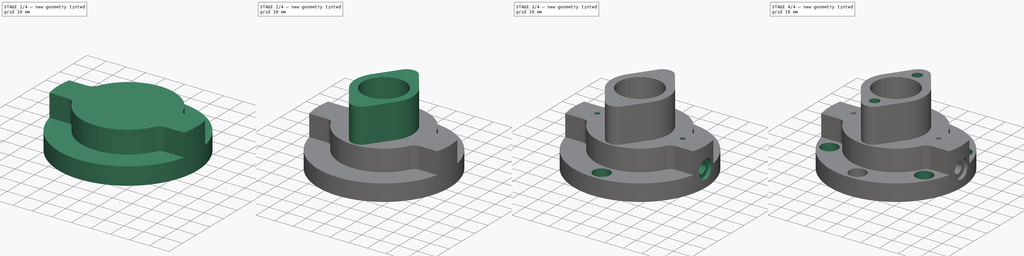
[diagram: build sequence overview — one tinted view per stage of 4, left to right]
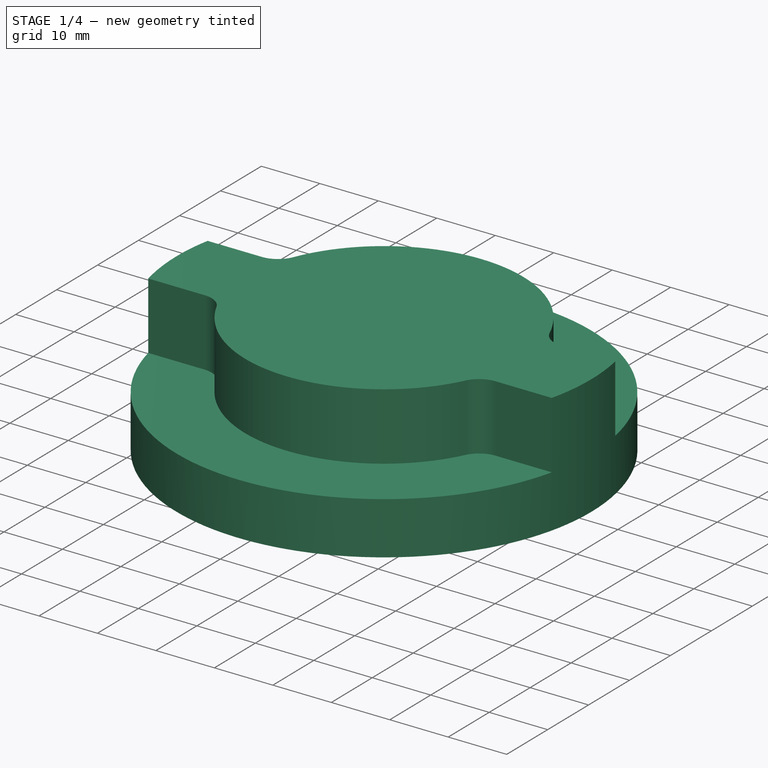
[diagram: stage 1 of 4 — iso view after this stage's code; geometry added in this stage tinted green]
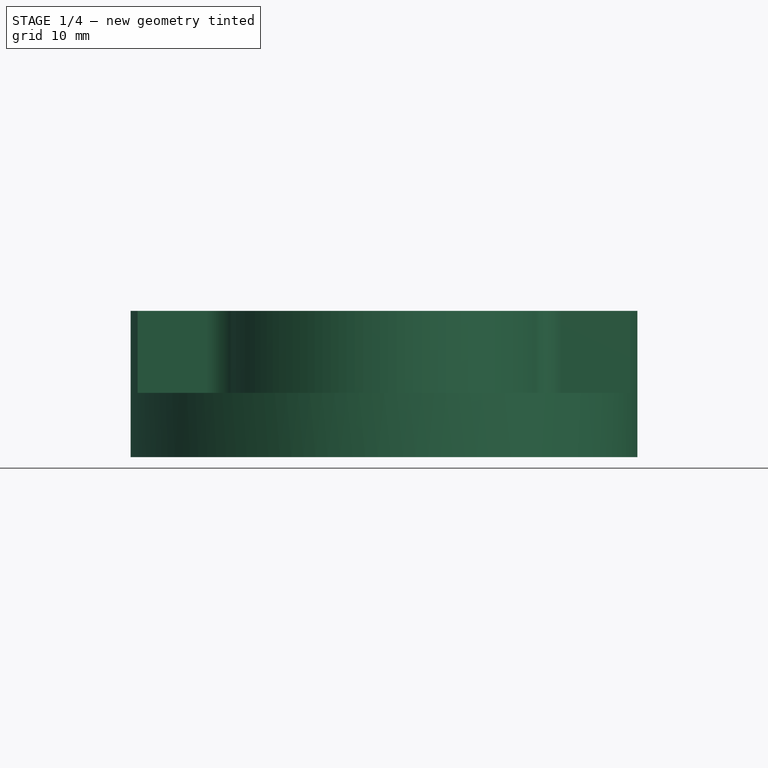
[diagram: stage 1 of 4 — front view after this stage's code; geometry added in this stage tinted green]
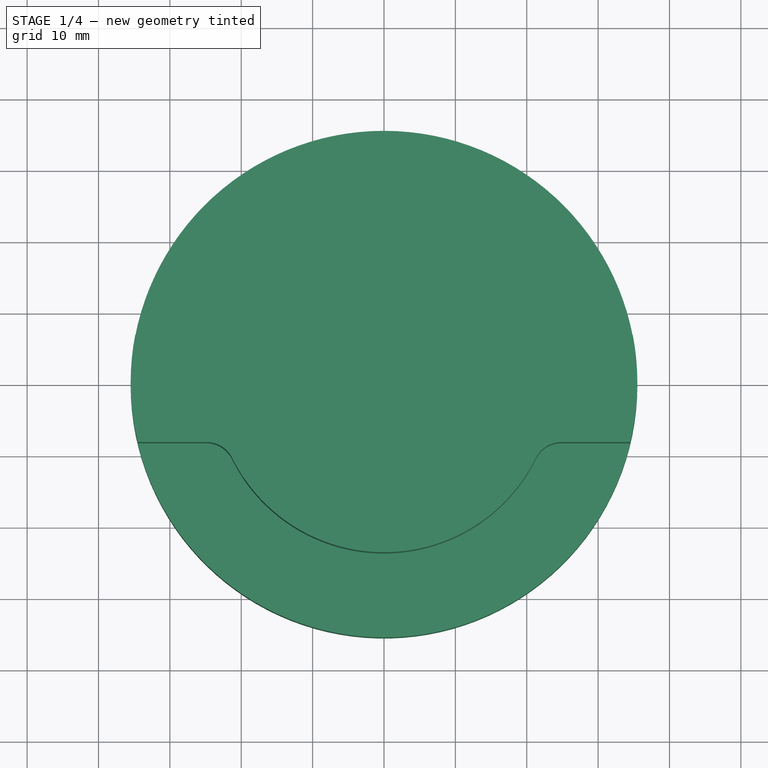
[diagram: stage 1 of 4 — top view after this stage's code; geometry added in this stage tinted green]
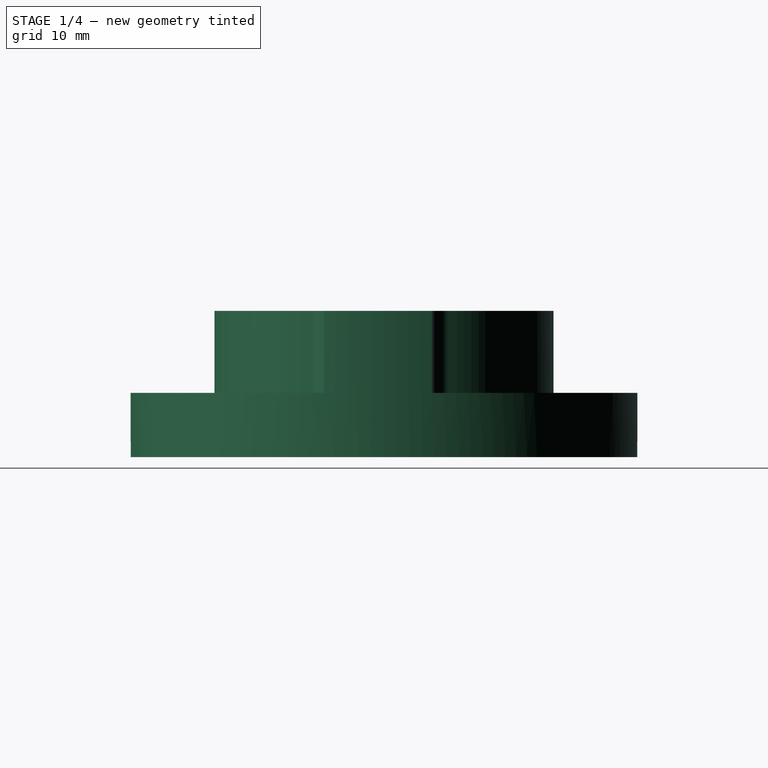
[diagram: stage 1 of 4 — right view after this stage's code; geometry added in this stage tinted green]
FCSTD DOCUMENT  (FreeCAD 0.21R33771 (Git))
Label: ex92
License: All rights reserved
LicenseURL: https://en.wikipedia.org/wiki/All_rights_reserved
objects: Sketcher::SketchObject×8, PartDesign::Pad×2, PartDesign::Fillet×2, PartDesign::Groove×2, PartDesign::Mirrored×2, PartDesign::Hole×2, PartDesign::Revolution×1, PartDesign::Pocket×1, PartDesign::PolarPattern×1, PartDesign::Body×1
note: 32 computed .brp shape members not serialized (recipe doc carries the construction recipe); baked Part::Feature solids carry a one-line shape summary decoded from their .brp

FEATURE [Sketcher::SketchObject] Sketch
  FullyConstrained = true
  MapMode = 5
  Placement = pos=(0,0,0) rot=(1,0,0;1.5708rad)
  Support = -> [XZ_Plane]
  sketch-geometry (6):
    g0: LineSegment StartX=0 StartY=0 StartZ=0 EndX=35.5 EndY=0 EndZ=0
    g1: LineSegment StartX=35.5 StartY=0 StartZ=0 EndX=35.5 EndY=9 EndZ=0
    g2: LineSegment StartX=35.5 StartY=9 StartZ=0 EndX=23.75 EndY=9 EndZ=0
    g3: LineSegment StartX=23.75 StartY=9 StartZ=0 EndX=23.75 EndY=20.5 EndZ=0
    g4: LineSegment StartX=23.75 StartY=20.5 StartZ=0 EndX=0 EndY=20.5 EndZ=0
    g5: LineSegment StartX=0 StartY=20.5 StartZ=0 EndX=0 EndY=0 EndZ=0
  constraints (17):
    c: Coincident(g-1,g0)
    c: PointOnObject(g0,g-1)
    c: Coincident(g0,g1)
    c: Vertical(g1)
    c: Coincident(g1,g2)
    c: Horizontal(g2)
    c: Coincident(g2,g3)
    c: Coincident(g3,g4)
    c: PointOnObject(g4,g-2)
    c: Horizontal(g4)
    c: Coincident(g4,g5)
    c: Coincident(g5,g0)
    c: Vertical(g3)
    c: DistanceX(g0,g0) = 35.5
    c: DistanceY(g0,g3) = 20.5
    c: DistanceY(g1,g1) = 9
    c: DistanceX(g4,g4) = 23.75
FEATURE [PartDesign::Revolution] Revolution
  Angle = 360
  Axis = (0,2e-16,1)
  Base = (0,0,0)
  Placement = pos=(0,0,0) rot=(1,0,0;1.5708rad)
  Profile = -> Sketch
  ReferenceAxis = -> Sketch [V_Axis]
  Reversed = true
FEATURE [Sketcher::SketchObject] Sketch001
  ExternalGeometry = -> [Revolution]
  FullyConstrained = false
  MapMode = 5
  Placement = pos=(0,2e-15,9) rot=(0,0,1;3.14159rad)
  Support = -> [Revolution]
  sketch-geometry (5):
    g0: LineSegment StartX=-34.5147 StartY=8.30571 StartZ=0 EndX=34.5147 EndY=8.30571 EndZ=0
    g1: GeomPoint X=0 Y=0 Z=0
    g2: ArcOfCircle CenterX=0 CenterY=0 CenterZ=0 NormalX=0 NormalY=0 NormalZ=1 AngleXU=0 Radius=35.5 StartAngle=2.90544 EndAngle=3.3313
    g3: LineSegment StartX=34.8631 StartY=-6.69429 StartZ=0 EndX=-34.8631 EndY=-6.69429 EndZ=0
    g4: ArcOfCircle CenterX=0 CenterY=0 CenterZ=0 NormalX=0 NormalY=0 NormalZ=1 AngleXU=0 Radius=35.5 StartAngle=6.09348 EndAngle=6.51934
  constraints (12):
    c: Horizontal(g0)
    c: Coincident(g1,g-1)
    c: Coincident(g2,g1)
    c: DistanceY(g3,g0) = 15
    c: Parallel(g0,g3)
    c: Coincident(g4,g0)
    c: Coincident(g2,g0)
    c: Equal(g2,g4)
    c: Coincident(g2,g3)
    c: Coincident(g4,g3)
    c: Coincident(g2,g4)
    c: Tangent(g-3,g2)
FEATURE [PartDesign::Pad] Pad
  BaseFeature = -> Revolution
  Direction = (0,2e-16,1)
  Length = 10
  Length2 = 10
  Placement = pos=(0,0,0) rot=(1,0,0;1.5708rad)
  Profile = -> Sketch001
  ReferenceAxis = -> Sketch001 [N_Axis]
  Refine = true
  Type = 3
  UpToFace = -> Revolution [Face5]
FEATURE [PartDesign::Fillet] Fillet
  Base = -> Pad [Edge9,Edge5,Edge23,Edge24]
  BaseFeature = -> Pad
  Placement = pos=(0,0,0) rot=(1,0,0;1.5708rad)
  Radius = 4
  SupportTransform = false
  UseAllEdges = false
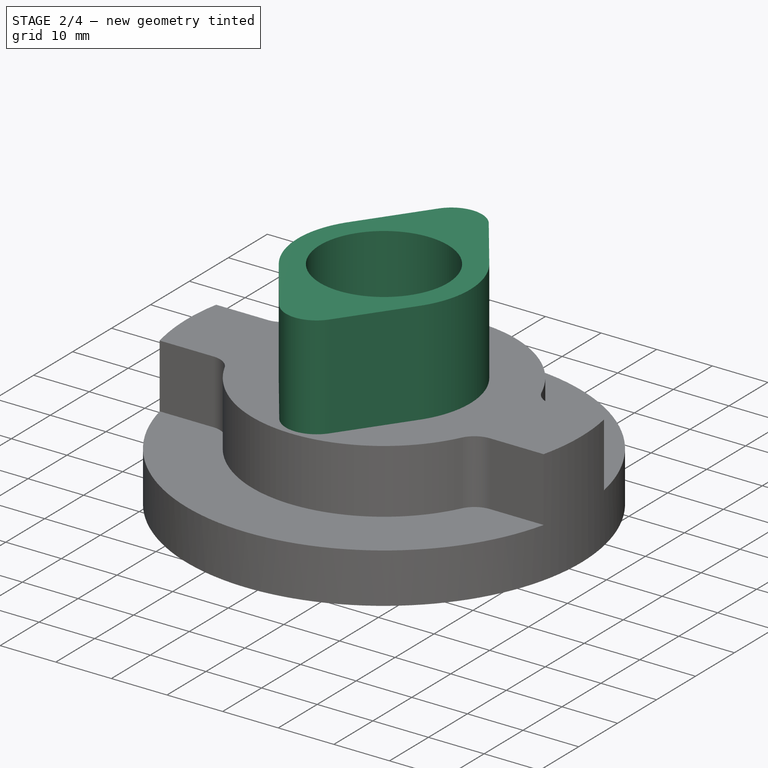
[diagram: stage 2 of 4 — iso view after this stage's code; geometry added in this stage tinted green]
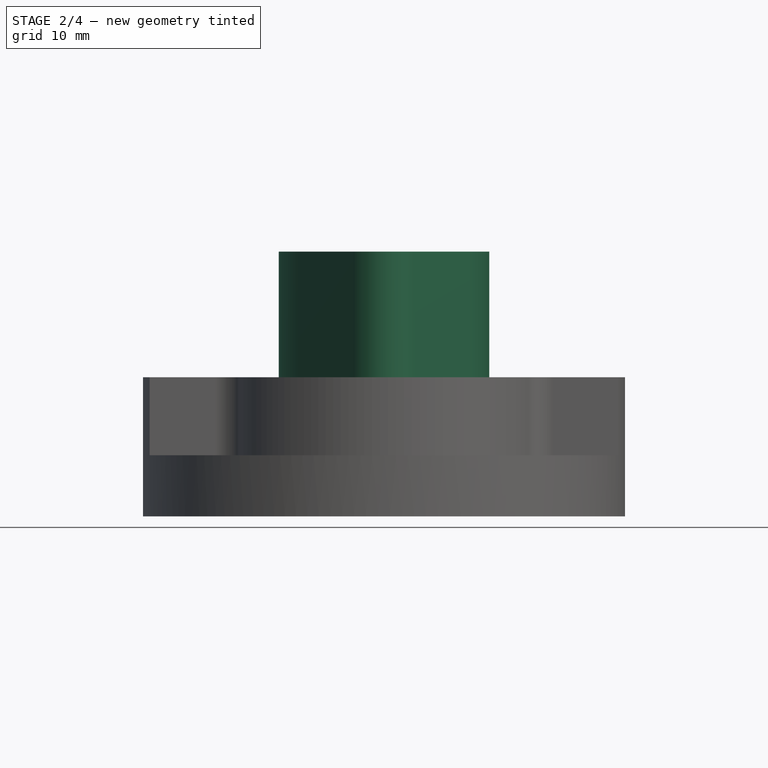
[diagram: stage 2 of 4 — front view after this stage's code; geometry added in this stage tinted green]
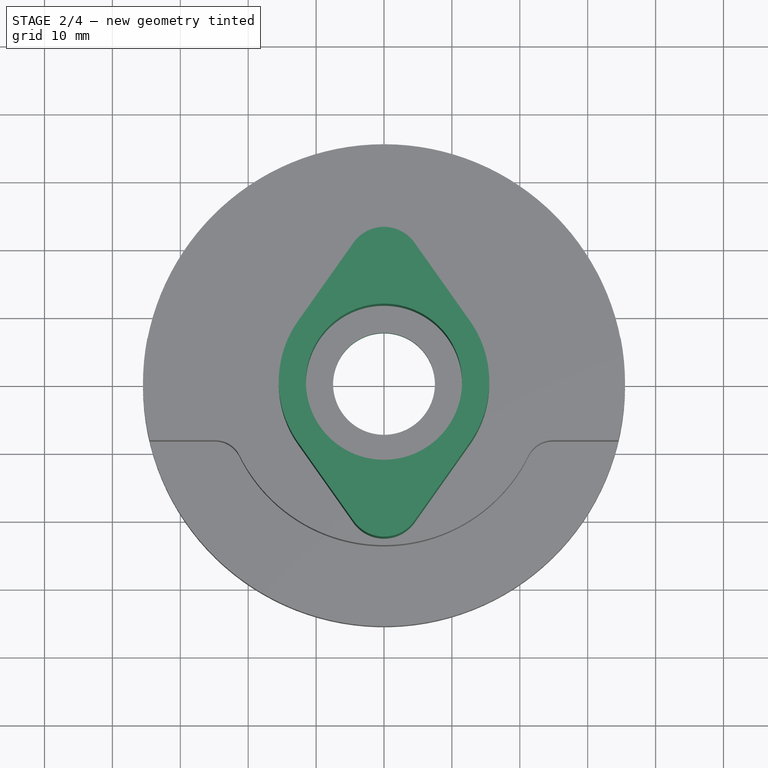
[diagram: stage 2 of 4 — top view after this stage's code; geometry added in this stage tinted green]
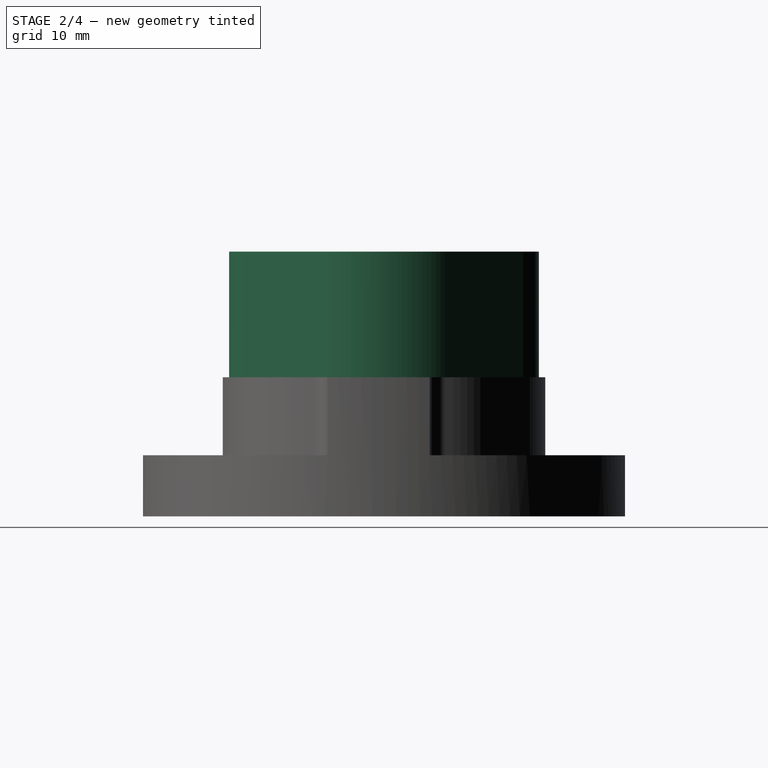
[diagram: stage 2 of 4 — right view after this stage's code; geometry added in this stage tinted green]
FEATURE [Sketcher::SketchObject] Sketch002
  FullyConstrained = false
  MapMode = 5
  Placement = pos=(0,5.4e-15,20.5) rot=(0,0,1;3.14159rad)
  Support = -> [Fillet]
  sketch-geometry (8):
    g0: ArcOfCircle CenterX=0 CenterY=0 CenterZ=0 NormalX=0 NormalY=0 NormalZ=1 AngleXU=0 Radius=15.5 StartAngle=2.5256 EndAngle=3.75759
    g1: ArcOfCircle CenterX=0 CenterY=17.3078 CenterZ=0 NormalX=0 NormalY=0 NormalZ=1 AngleXU=0 Radius=5.5 StartAngle=0.615998 EndAngle=2.5256
    g2: ArcOfCircle CenterX=0 CenterY=-17.3078 CenterZ=0 NormalX=0 NormalY=0 NormalZ=1 AngleXU=0 Radius=5.5 StartAngle=3.75759 EndAngle=5.66719
    g3: LineSegment StartX=-4.48909 StartY=20.4856 StartZ=0 EndX=-12.6511 EndY=8.95548 EndZ=0
    g4: LineSegment StartX=-12.6511 StartY=-8.95548 StartZ=0 EndX=-4.48909 EndY=-20.4856 EndZ=0
    g5: LineSegment StartX=4.48909 StartY=-20.4856 StartZ=0 EndX=12.6511 EndY=-8.95548 EndZ=0
    g6: LineSegment StartX=4.48909 StartY=20.4856 StartZ=0 EndX=12.6511 EndY=8.95548 EndZ=0
    g7: ArcOfCircle CenterX=0 CenterY=0 CenterZ=0 NormalX=0 NormalY=0 NormalZ=1 AngleXU=0 Radius=15.5 StartAngle=5.66719 EndAngle=6.89918
  constraints (16):
    c: Coincident(g0,g-1)
    c: Radius(g0) = 15.5
    c: PointOnObject(g1,g-2)
    c: Equal(g2,g1)
    c: Radius(g1) = 5.5
    c: Symmetric(g2,g1,g0)
    c: PointOnObject(g5,g0)
    c: Tangent(g0,g3) = -1.5708
    c: Coincident(g0,g7)
    c: Tangent(g2,g4) = -1.5708
    c: Tangent(g1,g3) = -1.5708
    c: Tangent(g1,g6) = 1.5708
    c: Tangent(g7,g6) = 1.5708
    c: Tangent(g0,g4) = -1.5708
    c: Tangent(g5,g7) = -1.5708
    c: Tangent(g2,g5) = -1.5708
FEATURE [PartDesign::Pad] Pad001
  BaseFeature = -> Fillet
  Direction = (0,3e-16,1)
  Length = 18.5
  Length2 = 10
  Placement = pos=(0,0,0) rot=(1,0,0;1.5708rad)
  Profile = -> Sketch002
  ReferenceAxis = -> Sketch002 [N_Axis]
  Type = 0
FEATURE [Sketcher::SketchObject] Sketch003
  FullyConstrained = false
  MapMode = 5
  Placement = pos=(0,0,0) rot=(1,0,0;1.5708rad)
  Support = -> [XZ_Plane]
  sketch-geometry (10):
    g0: LineSegment StartX=0 StartY=0 StartZ=0 EndX=15.5 EndY=0 EndZ=0
    g1: LineSegment StartX=15.5 StartY=0 StartZ=0 EndX=15.5 EndY=9 EndZ=0
    g2: LineSegment StartX=15.5 StartY=9 StartZ=0 EndX=12.5 EndY=9 EndZ=0
    g3: LineSegment StartX=12.5 StartY=9 StartZ=0 EndX=10.6244 EndY=16 EndZ=0
    g4: LineSegment StartX=10.6244 StartY=16 StartZ=0 EndX=7.5 EndY=16 EndZ=0
    g5: LineSegment StartX=7.5 StartY=16 StartZ=0 EndX=7.5 EndY=20.5 EndZ=0
    g6: LineSegment StartX=7.5 StartY=20.5 StartZ=0 EndX=11.5 EndY=20.5 EndZ=0
    g7: LineSegment StartX=11.5 StartY=20.5 StartZ=0 EndX=11.5 EndY=43.8666 EndZ=0
    g8: LineSegment StartX=11.5 StartY=43.8666 StartZ=0 EndX=0 EndY=43.8666 EndZ=0
    g9: LineSegment StartX=0 StartY=43.8666 StartZ=0 EndX=0 EndY=0 EndZ=0
  constraints (28):
    c: Coincident(g-1,g0)
    c: PointOnObject(g0,g-1)
    c: Coincident(g0,g1)
    c: Coincident(g1,g2)
    c: Coincident(g2,g3)
    c: Coincident(g3,g4)
    c: Coincident(g4,g5)
    c: Vertical(g5)
    c: Horizontal(g2)
    c: Vertical(g1)
    c: Horizontal(g4)
    c: Coincident(g5,g6)
    c: Horizontal(g6)
    c: Coincident(g6,g7)
    c: Coincident(g7,g8)
    c: PointOnObject(g8,g-2)
    c: Coincident(g8,g9)
    c: Coincident(g9,g0)
    c: Horizontal(g8)
    c: Vertical(g7)
    c: DistanceX(g8,g8) = 11.5
    c: Distance(g5,g9) = 7.5
    c: DistanceX(g0,g0) = 15.5
    c: DistanceY(g0,g6) = 20.5
    c: DistanceY(g1,g1) = 9
    c: Distance(g2,g9) = 12.5
    c: Angle(g9,g3) = 0.261799
    c: DistanceY(g-1,g3) = 16
FEATURE [PartDesign::Groove] Groove
  Angle = 360
  Axis = (0,2e-16,1)
  Base = (0,0,0)
  BaseFeature = -> Pad001
  Placement = pos=(0,0,0) rot=(1,0,0;1.5708rad)
  Profile = -> Sketch003
  ReferenceAxis = -> Sketch003 [V_Axis]
FEATURE [PartDesign::Fillet] Fillet001
  Base = -> Groove [Edge71]
  BaseFeature = -> Groove
  Placement = pos=(0,0,0) rot=(1,0,0;1.5708rad)
  Radius = 2
  SupportTransform = false
  UseAllEdges = false
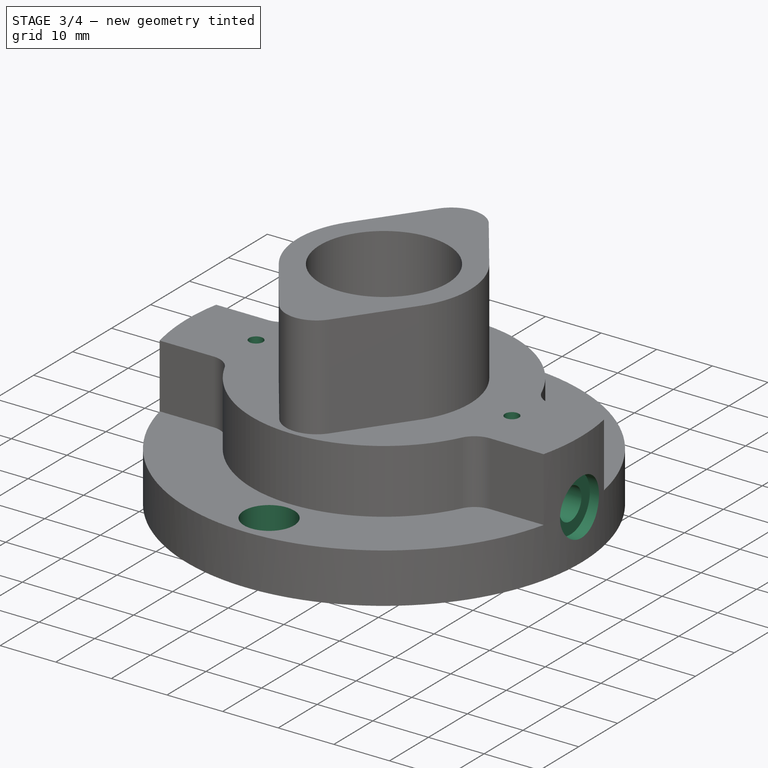
[diagram: stage 3 of 4 — iso view after this stage's code; geometry added in this stage tinted green]
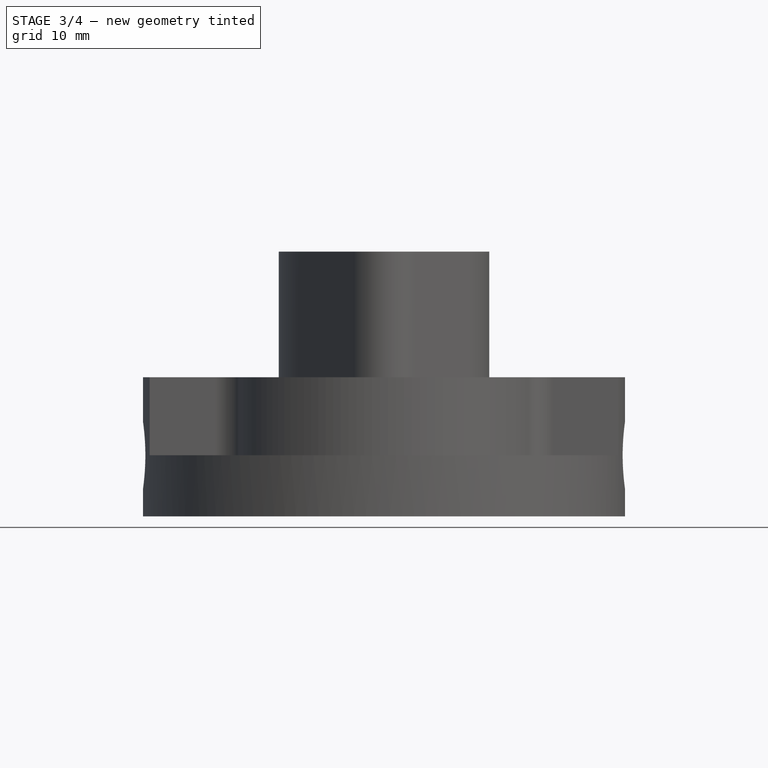
[diagram: stage 3 of 4 — front view after this stage's code; geometry added in this stage tinted green]
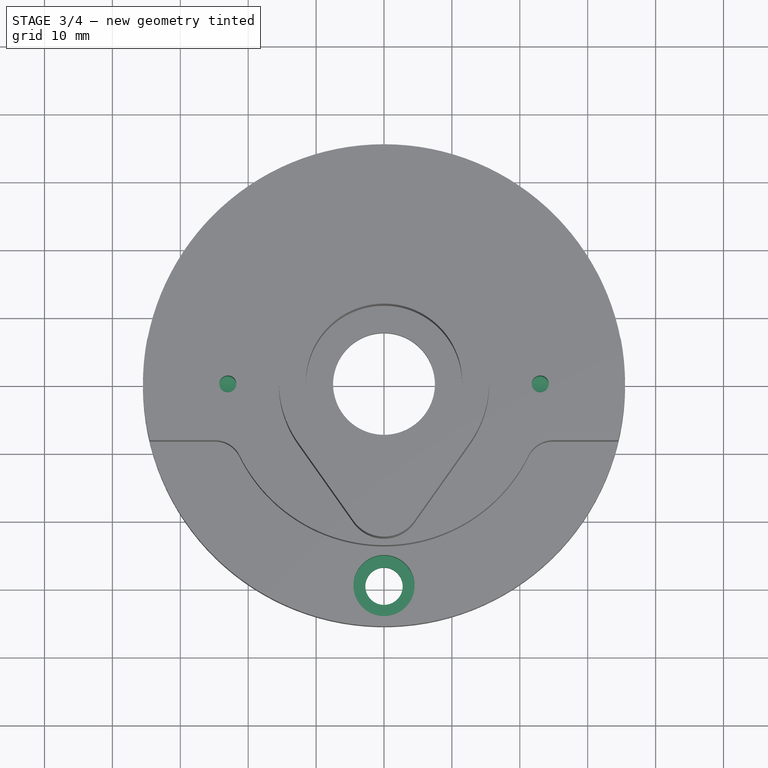
[diagram: stage 3 of 4 — top view after this stage's code; geometry added in this stage tinted green]
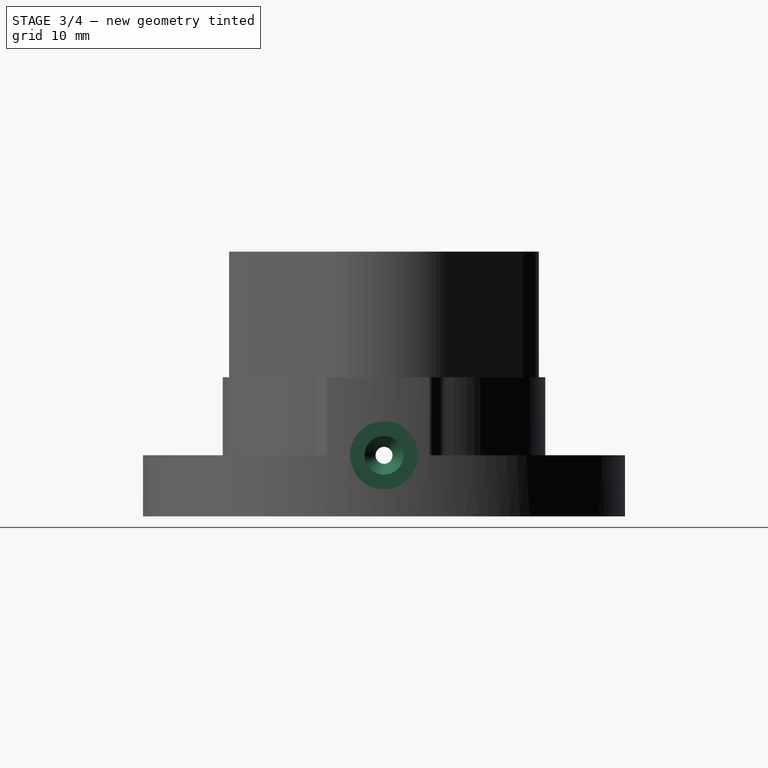
[diagram: stage 3 of 4 — right view after this stage's code; geometry added in this stage tinted green]
FEATURE [Sketcher::SketchObject] Sketch004
  ExternalGeometry = -> [Fillet001]
  FullyConstrained = false
  MapMode = 5
  Placement = pos=(0,0,0) rot=(1,0,0;1.5708rad)
  Support = -> [XZ_Plane]
  sketch-geometry (8):
    g0: LineSegment StartX=-40.1953 StartY=4 StartZ=0 EndX=-33.5 EndY=4 EndZ=0
    g1: LineSegment StartX=-33.5 StartY=4 StartZ=0 EndX=-33.5 EndY=6.15 EndZ=0
    g2: LineSegment StartX=-33.5 StartY=6.15 StartZ=0 EndX=-19.5 EndY=6.15 EndZ=0
    g3: LineSegment StartX=-19.5 StartY=6.15 StartZ=0 EndX=-17.9 EndY=7.75 EndZ=0
    g4: LineSegment StartX=-17.9 StartY=7.75 StartZ=0 EndX=0 EndY=7.75 EndZ=0
    g5: LineSegment StartX=0 StartY=9 StartZ=0 EndX=-40.1953 EndY=9 EndZ=0
    g6: LineSegment StartX=-40.1953 StartY=9 StartZ=0 EndX=-40.1953 EndY=4 EndZ=0
    g7: LineSegment StartX=0 StartY=9 StartZ=0 EndX=0 EndY=7.75 EndZ=0
  constraints (22):
    c: Horizontal(g0)
    c: Coincident(g0,g1)
    c: Coincident(g1,g2)
    c: Horizontal(g2)
    c: Coincident(g2,g3)
    c: Coincident(g3,g4)
    c: Horizontal(g4)
    c: Horizontal(g5)
    c: Coincident(g5,g6)
    c: Coincident(g6,g0)
    c: Vertical(g6)
    c: Vertical(g1)
    c: DistanceX(g-3,g0) = 2
    c: DistanceX(g-3,g2) = 16
    c: Angle(g5,g3) = 0.785398
    c: Coincident(g7,g5)
    c: Coincident(g7,g4)
    c: Tangent(g7,g-2)
    c: DistanceY(g7,g7) = 1.25
    c: DistanceY(g1,g5) = 2.85
    c: DistanceY(g1,g1) = 2.15
    c: DistanceY(g-1,g5) = 9
FEATURE [PartDesign::Groove] Groove001
  Angle = 360
  Axis = (-1,0,0)
  Base = (0,2e-15,9)
  BaseFeature = -> Fillet001
  Placement = pos=(0,0,0) rot=(1,0,0;1.5708rad)
  Profile = -> Sketch004
  ReferenceAxis = -> Sketch004 [Edge1]
  Reversed = true
FEATURE [PartDesign::Mirrored] Mirrored
  BaseFeature = -> Groove001
  MirrorPlane = -> Sketch004 [V_Axis]
  Originals = -> [Groove001]
  Placement = pos=(0,0,0) rot=(1,0,0;1.5708rad)
FEATURE [Sketcher::SketchObject] Sketch005
  FullyConstrained = true
  MapMode = 5
  Placement = pos=(0,5.4e-15,20.5) rot=(0,0,1;3.14159rad)
  Support = -> [Mirrored]
  sketch-geometry (2):
    g0: Circle CenterX=-23 CenterY=0 CenterZ=0 NormalX=0 NormalY=0 NormalZ=1 AngleXU=0 Radius=1.25
    g1: Circle CenterX=23 CenterY=0 CenterZ=0 NormalX=0 NormalY=0 NormalZ=1 AngleXU=0 Radius=1.25
  constraints (5):
    c: PointOnObject(g0,g-1)
    c: Equal(g0,g1)
    c: Distance(g0,g1) = 46
    c: Symmetric(g0,g1,g-1)
    c: Radius(g0) = 1.25
FEATURE [PartDesign::Pocket] Pocket
  BaseFeature = -> Mirrored
  Direction = (0,-3e-16,-1)
  Length = 11.5
  Length2 = 5
  Placement = pos=(0,0,0) rot=(1,0,0;1.5708rad)
  Profile = -> Sketch005
  ReferenceAxis = -> Sketch005 [N_Axis]
  Type = 0
FEATURE [Sketcher::SketchObject] Sketch006
  FullyConstrained = false
  MapMode = 5
  Placement = pos=(0,2e-15,9) rot=(0,0,1;3.14159rad)
  Support = -> [Pocket]
  sketch-geometry (1):
    g0: Circle CenterX=0 CenterY=29.5 CenterZ=0 NormalX=0 NormalY=0 NormalZ=1 AngleXU=0 Radius=3.86528
  constraints (2):
    c: PointOnObject(g0,g-2)
    c: DistanceY(g-1,g0) = 29.5
FEATURE [PartDesign::Hole] Hole
  BaseFeature = -> Pocket
  CustomThreadClearance = 0
  Depth = 25
  DepthType = 0
  Diameter = 5.5
  DrillForDepth = false
  DrillPoint = 1
  DrillPointAngle = 118
  HoleCutCountersinkAngle = 90
  HoleCutCustomValues = false
  HoleCutDepth = 5.5
  HoleCutDiameter = 9
  HoleCutType = 1
  ModelThread = false
  Placement = pos=(0,0,0) rot=(1,0,0;1.5708rad)
  Profile = -> Sketch006
  Tapered = false
  TaperedAngle = 90
  ThreadClass = 0
  ThreadDepth = 25
  ThreadDepthType = 0
  ThreadDirection = 0
  ThreadFit = 0
  ThreadSize = 0
  ThreadType = 0
  Threaded = false
  UseCustomThreadClearance = false
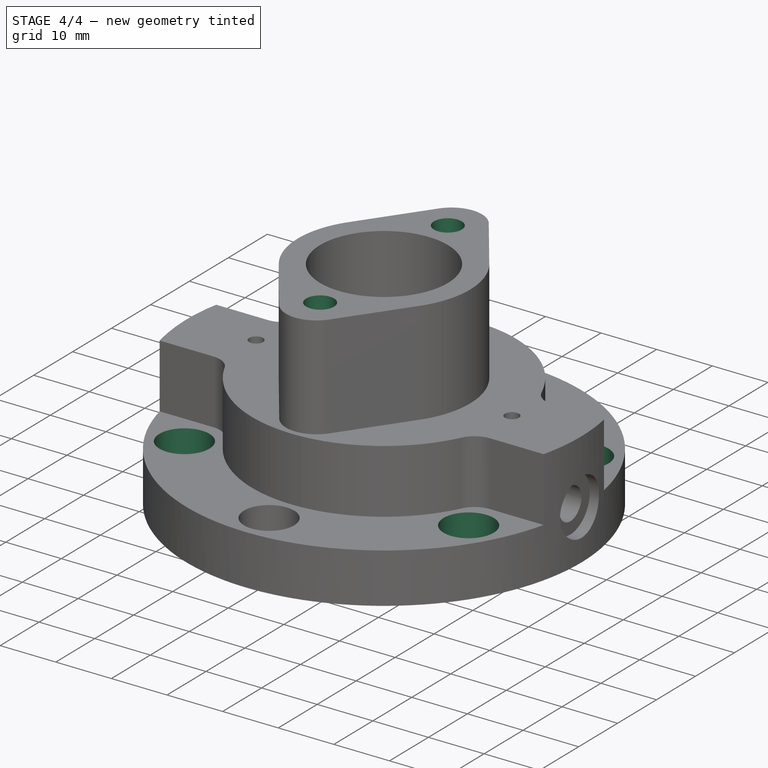
[diagram: stage 4 of 4 — iso view after this stage's code; geometry added in this stage tinted green]
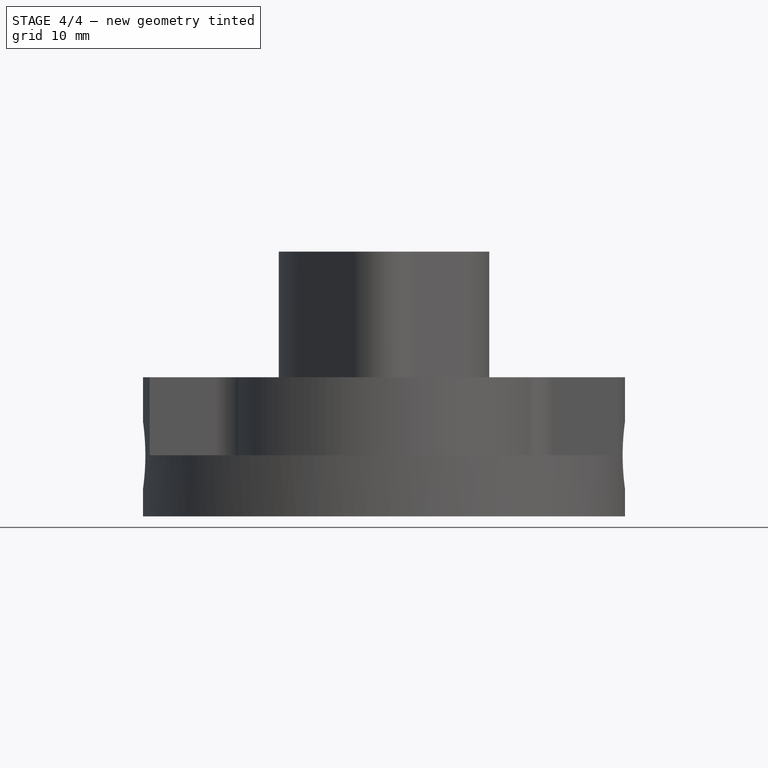
[diagram: stage 4 of 4 — front view after this stage's code; geometry added in this stage tinted green]
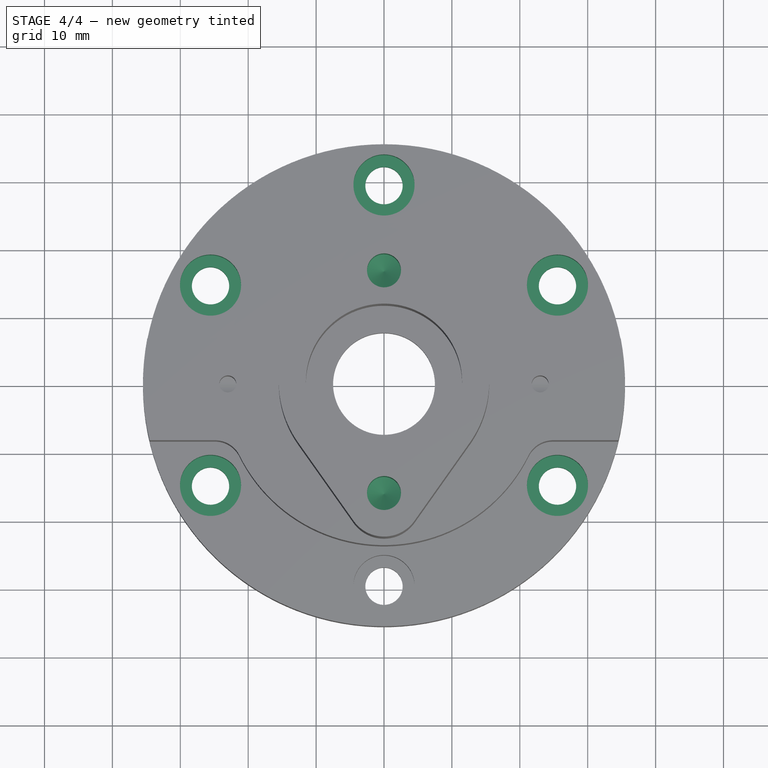
[diagram: stage 4 of 4 — top view after this stage's code; geometry added in this stage tinted green]
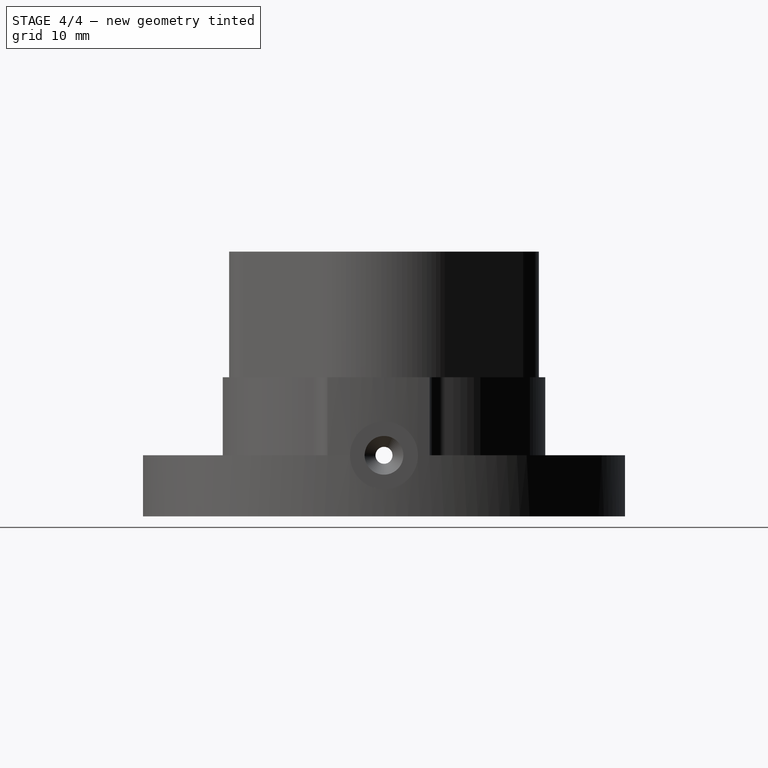
[diagram: stage 4 of 4 — right view after this stage's code; geometry added in this stage tinted green]
FEATURE [PartDesign::PolarPattern] PolarPattern
  Angle = 360
  Axis = -> Sketch006 [N_Axis]
  BaseFeature = -> Hole
  Occurrences = 6
  Originals = -> [Hole]
  Placement = pos=(0,0,0) rot=(1,0,0;1.5708rad)
FEATURE [Sketcher::SketchObject] Sketch007
  FullyConstrained = false
  MapMode = 5
  Placement = pos=(0,1.33e-14,39) rot=(0,0,1;3.14159rad)
  Support = -> [PolarPattern]
  sketch-geometry (1):
    g0: Circle CenterX=0 CenterY=16.3967 CenterZ=0 NormalX=0 NormalY=0 NormalZ=1 AngleXU=0 Radius=2.83126
  constraints (1):
    c: PointOnObject(g0,g-2)
FEATURE [PartDesign::Hole] Hole001
  BaseFeature = -> PolarPattern
  CustomThreadClearance = 0
  Depth = 7.5
  DepthType = 0
  Diameter = 5
  DrillForDepth = false
  DrillPoint = 1
  DrillPointAngle = 118
  HoleCutCountersinkAngle = 90
  HoleCutCustomValues = false
  HoleCutDepth = 0
  HoleCutDiameter = 6.1
  HoleCutType = 0
  ModelThread = false
  Placement = pos=(0,0,0) rot=(1,0,0;1.5708rad)
  Profile = -> Sketch007
  Tapered = false
  TaperedAngle = 90
  ThreadClass = 0
  ThreadDepth = 7.5
  ThreadDepthType = 0
  ThreadDirection = 0
  ThreadFit = 0
  ThreadSize = 0
  ThreadType = 0
  Threaded = false
  UseCustomThreadClearance = false
FEATURE [PartDesign::Mirrored] Mirrored001
  BaseFeature = -> Hole001
  MirrorPlane = -> XZ_Plane
  Originals = -> [Hole001]
  Placement = pos=(0,0,0) rot=(1,0,0;1.5708rad)
FEATURE [PartDesign::Body] Body
  Group = -> [Sketch,Revolution,Sketch001,Pad,Fillet,Sketch002,Pad001,Sketch003,Groove,Fillet001,Sketch004,Groove001,Mirrored,Sketch005,Pocket,Sketch006,Hole,PolarPattern,Sketch007,Hole001,Mirrored001]
  Origin = -> Origin
  Tip = -> Mirrored001
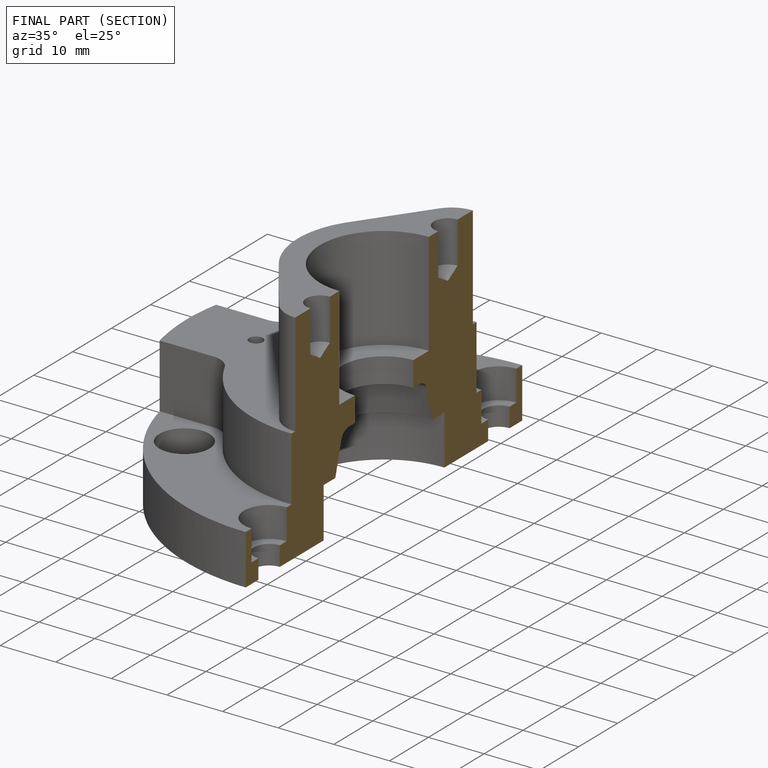
[diagram: finished part — half-section view (interior)]
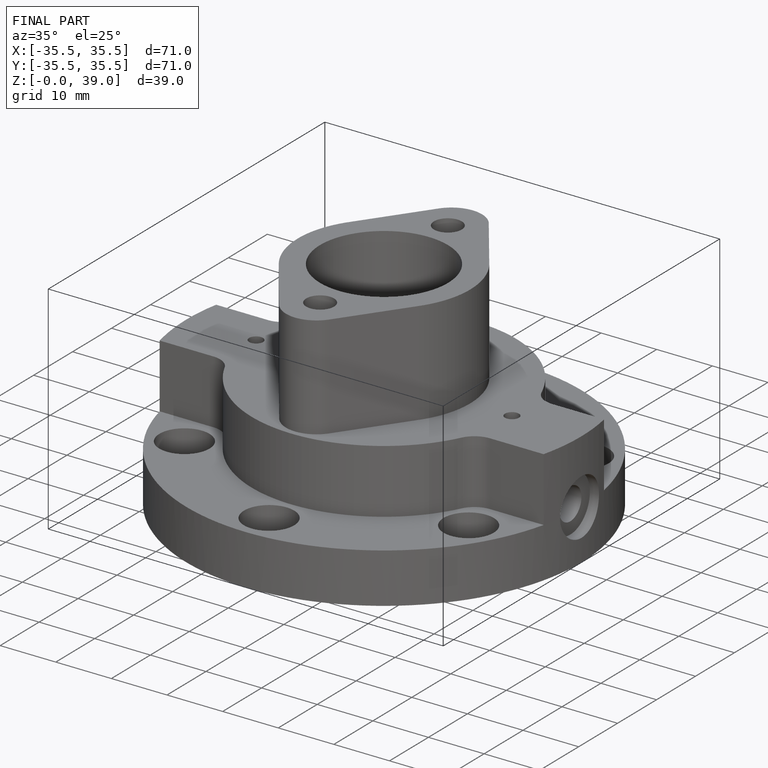
[diagram: finished part — iso view with bounding-box wireframe]
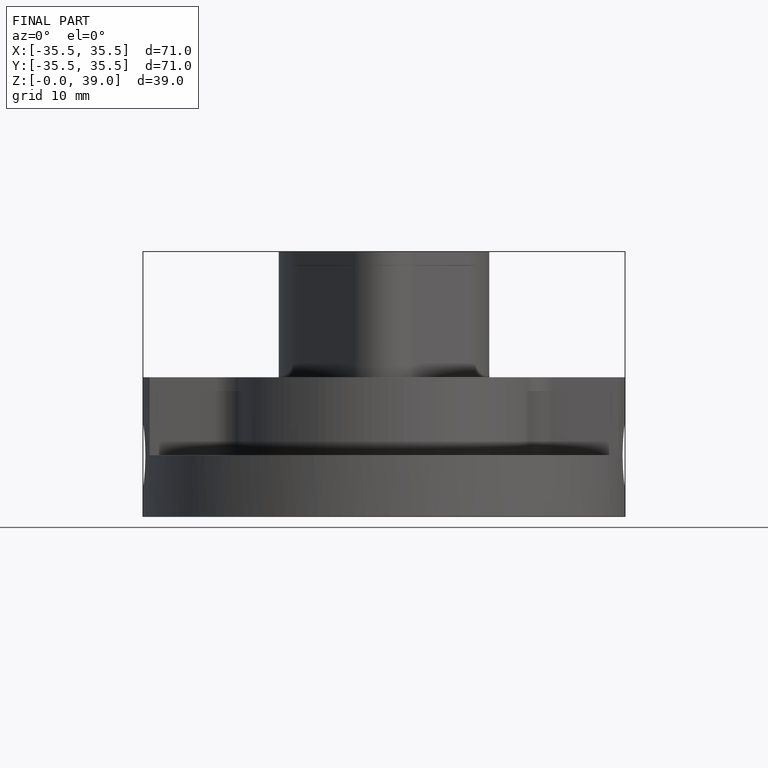
[diagram: finished part — front view with bounding-box wireframe]
